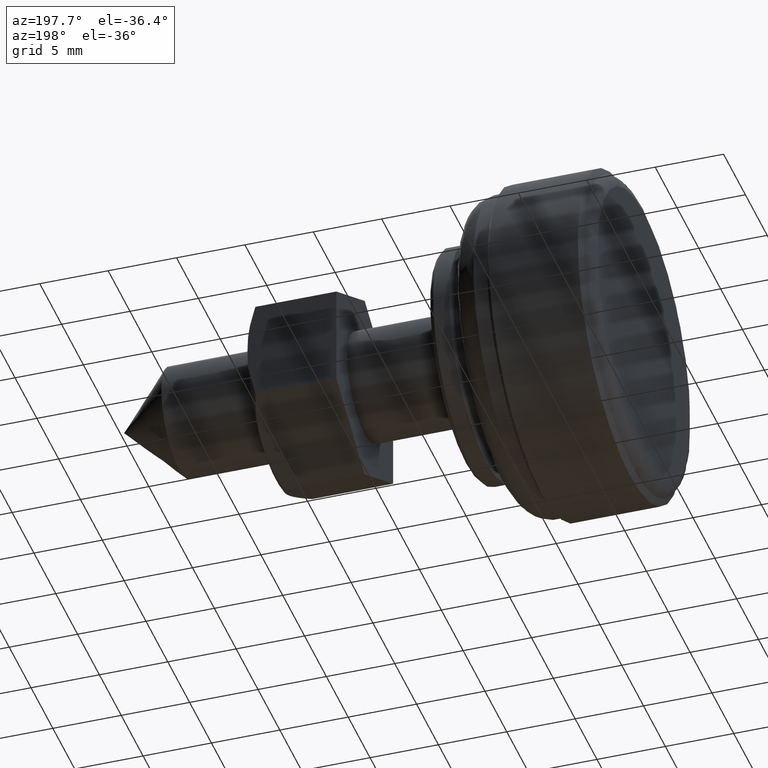
[diagram: clean part render]
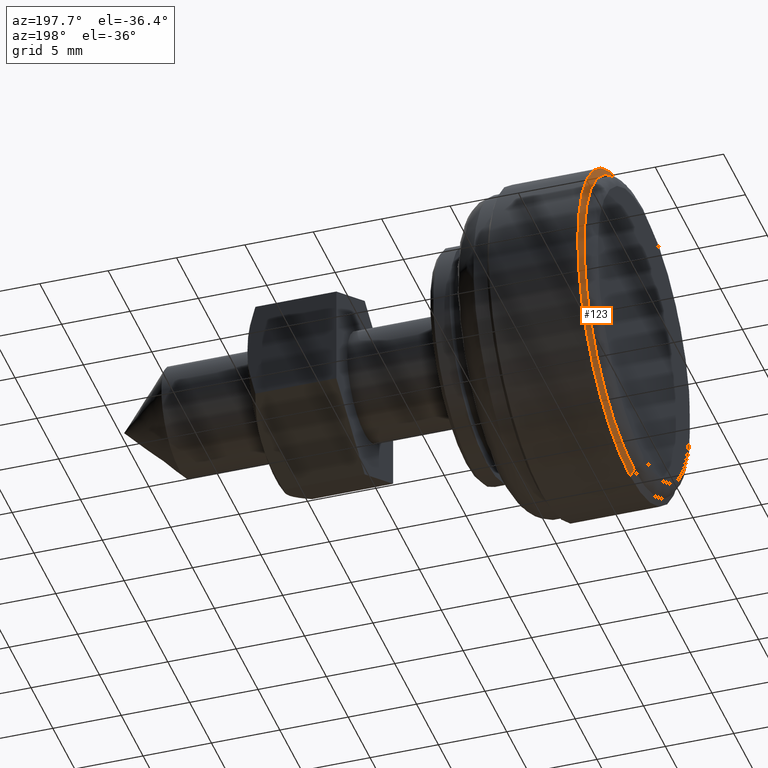
[diagram: same view with one face highlighted and labeled with its STEP entity id]
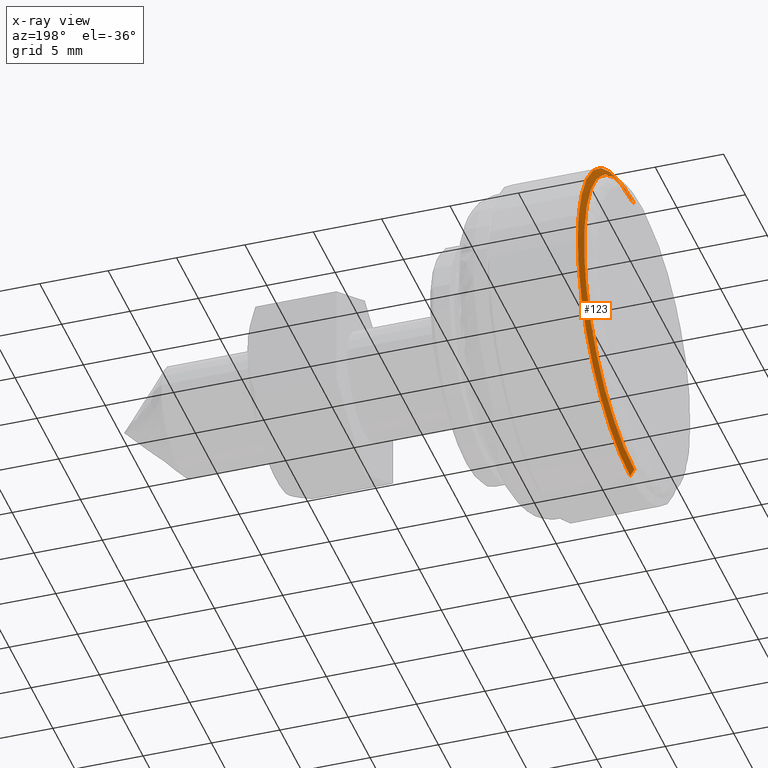
[diagram: x-ray of the same camera — body ghosted, the highlighted face saturated]
A machine part, auxiliary view. The second image highlights one B-rep face of the part: STEP entity #123.
The next image is the same camera in x-ray: the body ghosted, the highlighted face saturated — about 0% of this face is hidden behind the body in this view.
In plain terms, the highlighted face is a freeform B-spline surface patch.
Its self-contained STEP definition (entity closure, byte-faithful):
#123=ADVANCED_FACE('',(#268),#267,.T.);
#267=( BOUNDED_SURFACE() B_SPLINE_SURFACE( 2,1,((#697,#698),(#699,#700),(#701,#702),(#703,#704),(#705,#706)), .UNSPECIFIED.,.F.,.F.,.F.) B_SPLINE_SURFACE_WITH_KNOTS((3,2,3),(2,2),(0.00000000000E+00,5.00000000000E-01,1.00000000000E+00),(0.00000000000E+00,1.00000000000E+00), .UNSPECIFIED. ) GEOMETRIC_REPRESENTATION_ITEM() RATIONAL_B_SPLINE_SURFACE(((1.00000000000E+00,1.00000000000E+00),(7.07106781187E-01,7.07106781187E-01),(1.00000000000E+00,1.00000000000E+00),(7.07106781187E-01,7.07106781187E-01),(1.00000000000E+00,1.00000000000E+00))) REPRESENTATION_ITEM('') SURFACE() );
#268=FACE_OUTER_BOUND('',#707,.T.);
#697=CARTESIAN_POINT('',(-4.42000000000E+01,0.00000000000E+00,0.00000000000E+00));
#698=CARTESIAN_POINT('',(-3.40176623509E+01,2.07829453496E-15,-1.69705627484E+01));
#699=CARTESIAN_POINT('',(-4.42000000000E+01,0.00000000000E+00,0.00000000000E+00));
#700=CARTESIAN_POINT('',(-3.40176623509E+01,1.69705627484E+01,-1.69705627484E+01));
#701=CARTESIAN_POINT('',(-4.42000000000E+01,0.00000000000E+00,0.00000000000E+00));
#702=CARTESIAN_POINT('',(-3.40176623509E+01,1.69705627484E+01,1.03914726748E-15));
#703=CARTESIAN_POINT('',(-4.42000000000E+01,0.00000000000E+00,0.00000000000E+00));
#704=CARTESIAN_POINT('',(-3.40176623509E+01,1.69705627484E+01,1.69705627484E+01));
#705=CARTESIAN_POINT('',(-4.42000000000E+01,0.00000000000E+00,0.00000000000E+00));
#706=CARTESIAN_POINT('',(-3.40176623509E+01,0.00000000000E+00,1.69705627484E+01));
#707=EDGE_LOOP('',(#978,#979,#980,#981));
#978=ORIENTED_EDGE('',*,*,#1142,.F.);
#979=ORIENTED_EDGE('',*,*,#1139,.T.);
#980=ORIENTED_EDGE('',*,*,#1143,.T.);
#981=ORIENTED_EDGE('',*,*,#1141,.F.);
#1139=EDGE_CURVE('',#1373,#1366,#1374,.T.);
#1141=EDGE_CURVE('',#1380,#1365,#1387,.T.);
#1142=EDGE_CURVE('',#1373,#1380,#1393,.T.);
#1143=EDGE_CURVE('',#1366,#1365,#1399,.T.);
#1365=VERTEX_POINT('',#1890);
#1366=VERTEX_POINT('',#1891);
#1373=VERTEX_POINT('',#1896);
#1374=(BOUNDED_CURVE() B_SPLINE_CURVE(1,(#1897,#1898),.UNSPECIFIED.,.F.,.F.) B_SPLINE_CURVE_WITH_KNOTS((2,2),(6.77646847069E-01,7.07106781383E-01),.UNSPECIFIED.) CURVE() GEOMETRIC_REPRESENTATION_ITEM() RATIONAL_B_SPLINE_CURVE((1.00000000000E+00,1.00000000000E+00)) REPRESENTATION_ITEM('') );
#1380=VERTEX_POINT('',#1899);
#1387=(BOUNDED_CURVE() B_SPLINE_CURVE(1,(#1904,#1905),.UNSPECIFIED.,.F.,.F.) B_SPLINE_CURVE_WITH_KNOTS((2,2),(6.77646845811E-01,7.07106781187E-01),.UNSPECIFIED.) CURVE() GEOMETRIC_REPRESENTATION_ITEM() RATIONAL_B_SPLINE_CURVE((7.50000000000E-01,7.50000000000E-01)) REPRESENTATION_ITEM('') );
#1393=CIRCLE('',#1909,1.15000483181E+01);
#1399=CIRCLE('',#1913,1.20000000000E+01);
#1890=CARTESIAN_POINT('',(-3.70000000000E+01,-5.92118946467E-16,-1.20000000000E+01));
#1891=CARTESIAN_POINT('',(-3.70000000000E+01,0.00000000000E+00,1.20000000000E+01));
#1896=CARTESIAN_POINT('',(-3.72999710091E+01,0.00000000000E+00,1.15000483181E+01));
#1897=CARTESIAN_POINT('',(-3.72999709963E+01,-2.81660645315E-15,1.15000483395E+01));
#1898=CARTESIAN_POINT('',(-3.69999999980E+01,-2.93905524999E-15,1.20000000033E+01));
#1899=CARTESIAN_POINT('',(-3.72999710091E+01,1.18423789293E-15,-1.15000483181E+01));
#1904=CARTESIAN_POINT('',(-3.72999710091E+01,3.20998029135E-15,-1.15000483181E+01));
#1905=CARTESIAN_POINT('',(-3.70000000000E+01,3.34953057853E-15,-1.20000000000E+01));
#1906=CARTESIAN_POINT('',(-3.72999710091E+01,0.00000000000E+00,0.00000000000E+00));
#1907=DIRECTION('',(-1.00000000000E+00,0.00000000000E+00,0.00000000000E+00));
#1908=DIRECTION('',(0.00000000000E+00,-1.22460635382E-16,1.00000000000E+00));
#1909=AXIS2_PLACEMENT_3D('',#1906,#1907,#1908);
#1910=CARTESIAN_POINT('',(-3.70000000000E+01,0.00000000000E+00,0.00000000000E+00));
#1911=DIRECTION('',(-1.00000000000E+00,0.00000000000E+00,0.00000000000E+00));
#1912=DIRECTION('',(0.00000000000E+00,-1.22460635382E-16,1.00000000000E+00));
#1913=AXIS2_PLACEMENT_3D('',#1910,#1911,#1912);